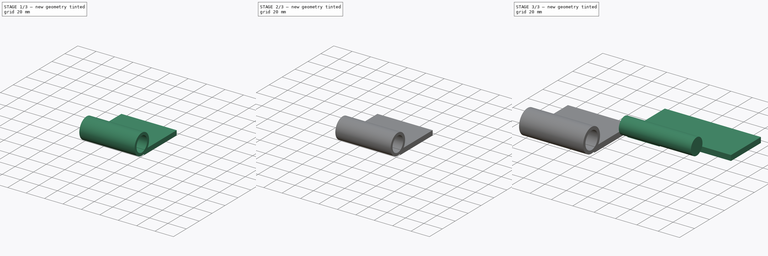
[diagram: build sequence overview — one tinted view per stage of 3, left to right]
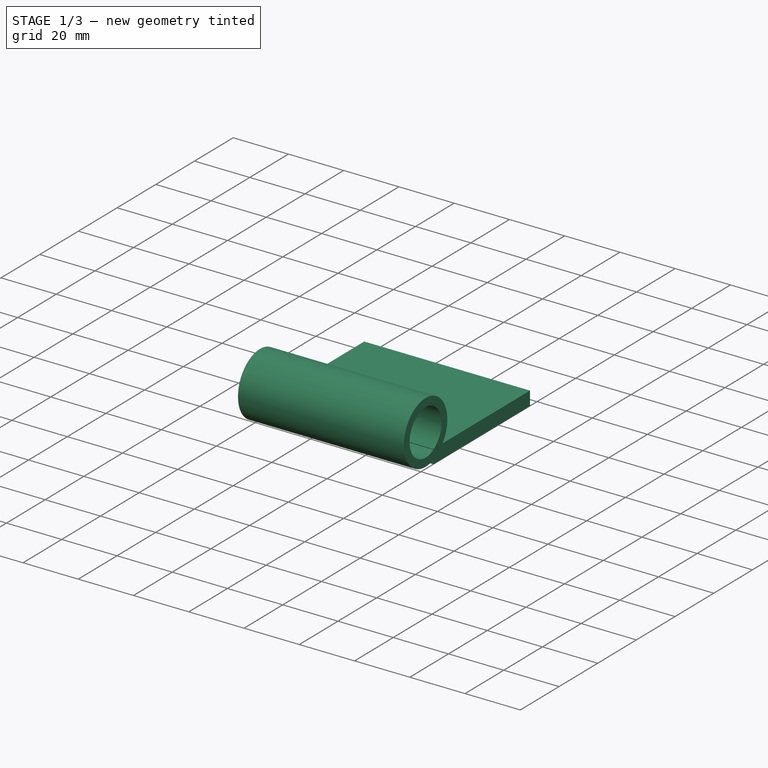
[diagram: stage 1 of 3 — iso view after this stage's code; geometry added in this stage tinted green]
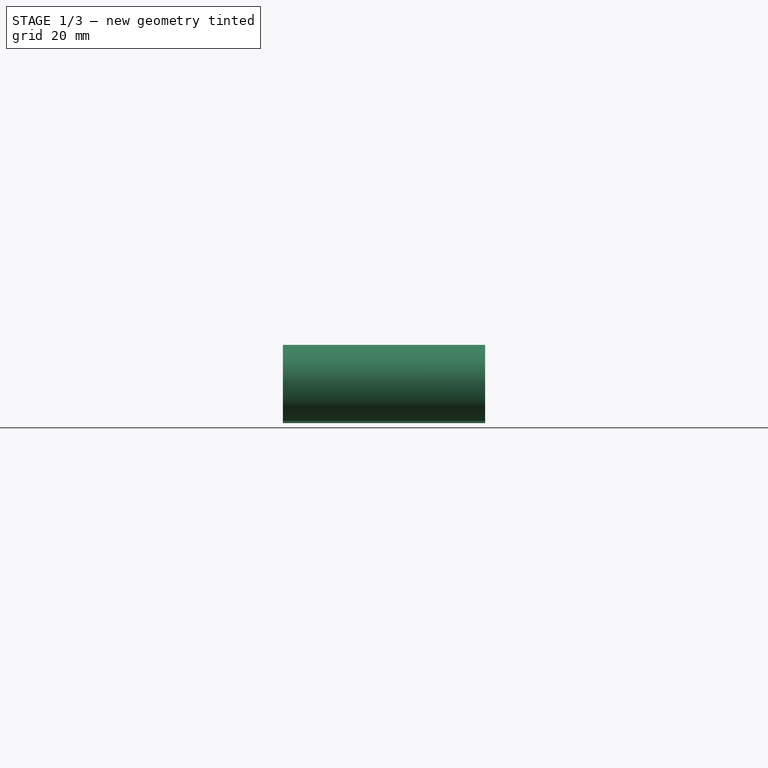
[diagram: stage 1 of 3 — front view after this stage's code; geometry added in this stage tinted green]
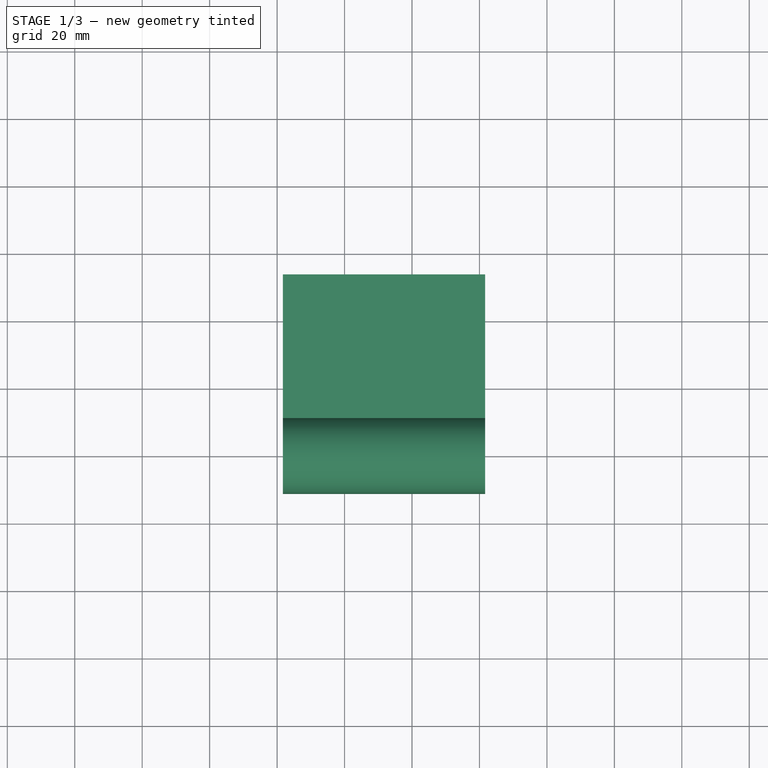
[diagram: stage 1 of 3 — top view after this stage's code; geometry added in this stage tinted green]
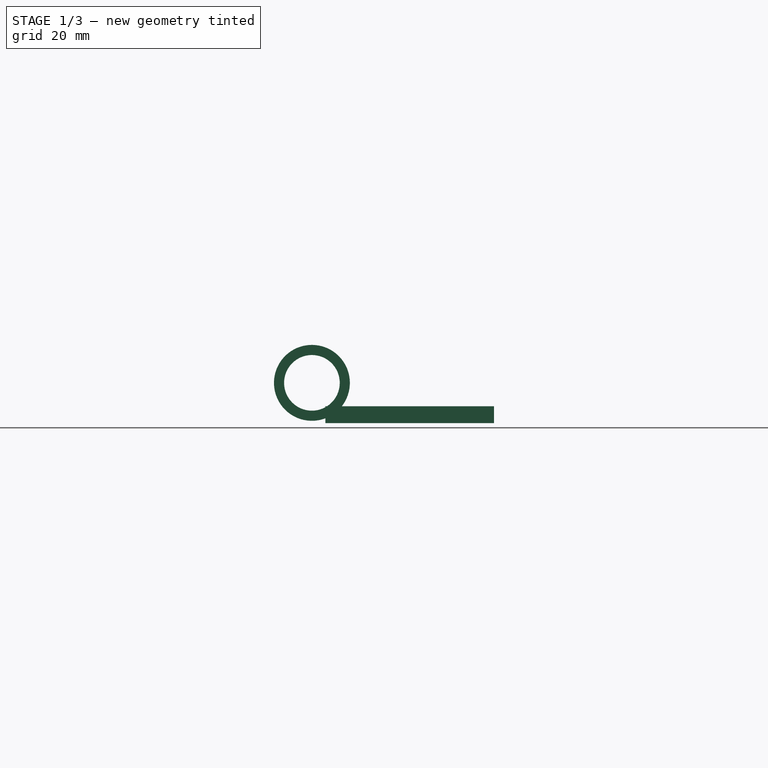
[diagram: stage 1 of 3 — right view after this stage's code; geometry added in this stage tinted green]
FCSTD DOCUMENT  (FreeCAD 1.0R)
Label: paramedic hinge
License: All rights reserved
objects: Sketcher::SketchObject×5, PartDesign::Pad×5, App::VarSet×2, PartDesign::Body×2
note: 27 computed .brp shape members not serialized (recipe doc carries the construction recipe); baked Part::Feature solids carry a one-line shape summary decoded from their .brp

FEATURE [PartDesign::Body] Body
  AllowCompound = false
  Group = -> [Sketch,Pad,Sketch001,Pad001]
  Origin = -> Origin
  Tip = -> Pad001
FEATURE [Sketcher::SketchObject] Sketch002
  ArcFitTolerance = 1e-06
  AttachmentSupport = -> [XY_Plane001]
  FullyConstrained = false
  MakeInternals = false
  MapMode = 5
  expr: Constraints[8] = <<VarSet2>>.width
  expr: Constraints[9] = <<VarSet2>>.lenth
  sketch-geometry (4):
    g0: LineSegment StartX=-18.3046 StartY=-6.03342 StartZ=0 EndX=-78.3046 EndY=-6.03342 EndZ=0
    g1: LineSegment StartX=-78.3046 StartY=-6.03342 StartZ=0 EndX=-78.3046 EndY=-56.0334 EndZ=0
    g2: LineSegment StartX=-78.3046 StartY=-56.0334 StartZ=0 EndX=-18.3046 EndY=-56.0334 EndZ=0
    g3: LineSegment StartX=-18.3046 StartY=-56.0334 StartZ=0 EndX=-18.3046 EndY=-6.03342 EndZ=0
  constraints (10):
    c: Coincident(g0,g1)
    c: Coincident(g1,g2)
    c: Coincident(g2,g3)
    c: Coincident(g3,g0)
    c: Horizontal(g0)
    c: Horizontal(g2)
    c: Vertical(g1)
    c: Vertical(g3)
    c: DistanceX(g0,g0) = 60
    c: DistanceY(g1,g1) = 50
FEATURE [App::VarSet] VarSet001  label="VarSet2"
  circle_back_pad = 22.5
  circle_base_distance = 8
  circle_diameter_thickness = 3
  circle_interior = 16.5
  depth = 5
  lenth = 50
  varset2 = 0
  width = 60
  expr: circle_back_pad = <<VarSet>>.length - <<VarSet>>.circle_pad
  expr: circle_base_distance = (circle_interior - 0.5) / 2
  expr: circle_interior = <<VarSet>>.circle_diameter + 1
  expr: depth = <<VarSet>>.depth
  expr: lenth = <<VarSet>>.width_expanded
  expr: width = VarSet.length - VarSet.widening_division
FEATURE [PartDesign::Pad] Pad002
  Direction = (0,0,1)
  Length = 5
  Length2 = 10
  Profile = -> Sketch002
  ReferenceAxis = -> Sketch002 [N_Axis]
  Refine = true
  Suppressed = false
  Type = 0
  expr: Length = <<VarSet2>>.depth
FEATURE [Sketcher::SketchObject] Sketch003
  ArcFitTolerance = 1e-06
  AttachmentSupport = -> [Pad002]
  ExternalGeometry = -> [Pad002]
  FullyConstrained = true
  MakeInternals = false
  MapMode = 5
  Placement = pos=(-78.3046,0,0) rot=(0.57735,-0.57735,-0.57735;2.0944rad)
  expr: Constraints[0] = VarSet001.circle_interior
  expr: Constraints[1] = <<VarSet2>>.circle_base_distance
  expr: Constraints[3] = <<VarSet2>>.circle_diameter_thickness
  expr: Constraints[4] = <<VarSet2>>.circle_base_distance / 2
  sketch-geometry (2):
    g0: Circle CenterX=60.0334 CenterY=11.9282 CenterZ=0 NormalX=0 NormalY=0 NormalZ=1 AngleXU=0 Radius=8.25
    g1: Circle CenterX=60.0334 CenterY=11.9282 CenterZ=0 NormalX=0 NormalY=0 NormalZ=1 AngleXU=0 Radius=11.25
  constraints (5):
    c: Diameter(g0) = 16.5
    c: Distance(g0,g-3) = 8
    c: Coincident(g1,g0)
    c: Distance(g0,g1) = 3
    c: DistanceX(g-4,g0) = 4
FEATURE [PartDesign::Pad] Pad003
  BaseFeature = -> Pad002
  Direction = (-1,0,0)
  Length = 60
  Length2 = 10
  Profile = -> Sketch003
  ReferenceAxis = -> Sketch003 [N_Axis]
  Refine = true
  Reversed = true
  Suppressed = false
  Type = 0
  expr: Length = <<VarSet2>>.width
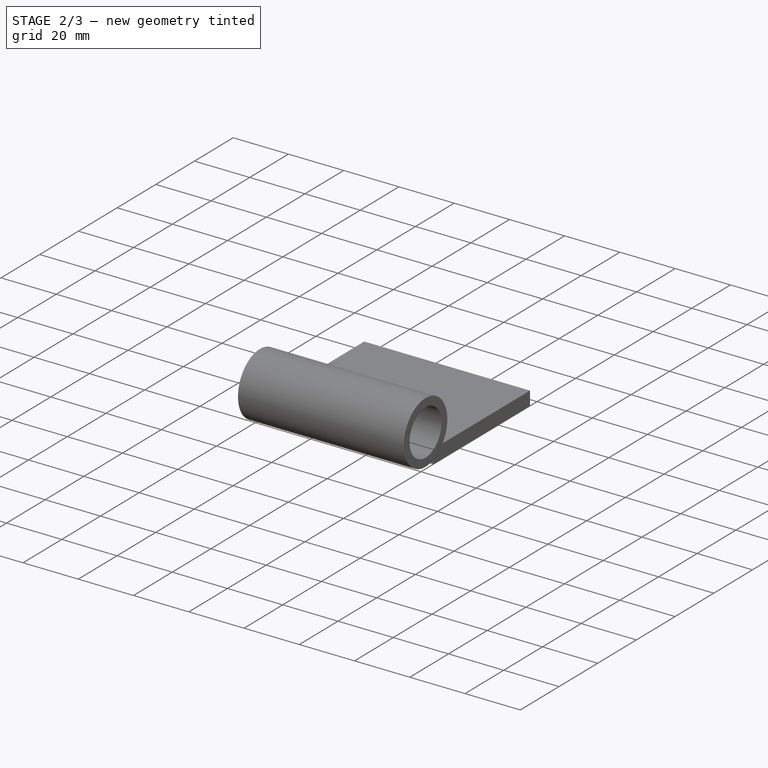
[diagram: stage 2 of 3 — iso view after this stage's code; geometry added in this stage tinted green]
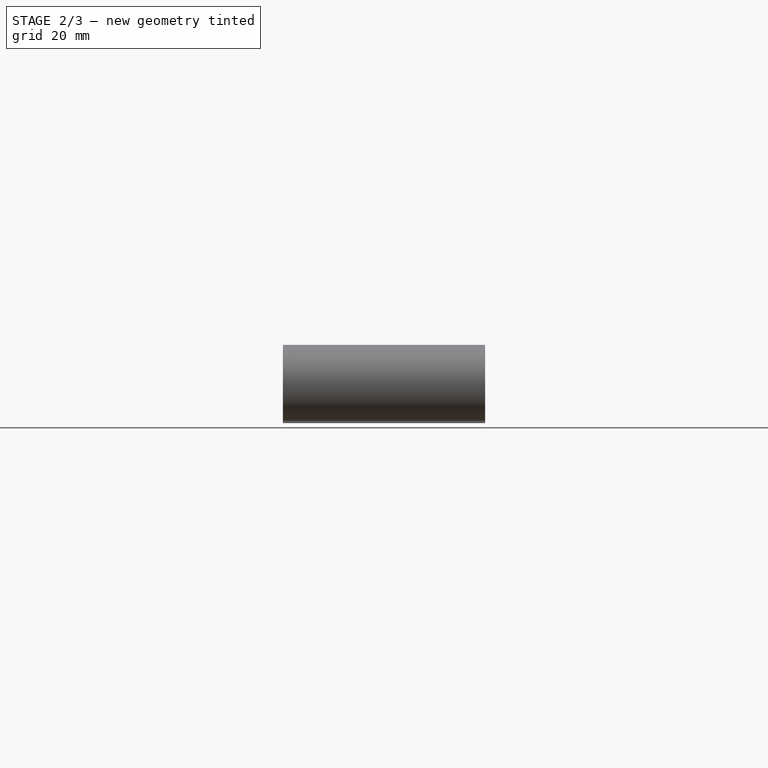
[diagram: stage 2 of 3 — front view after this stage's code; geometry added in this stage tinted green]
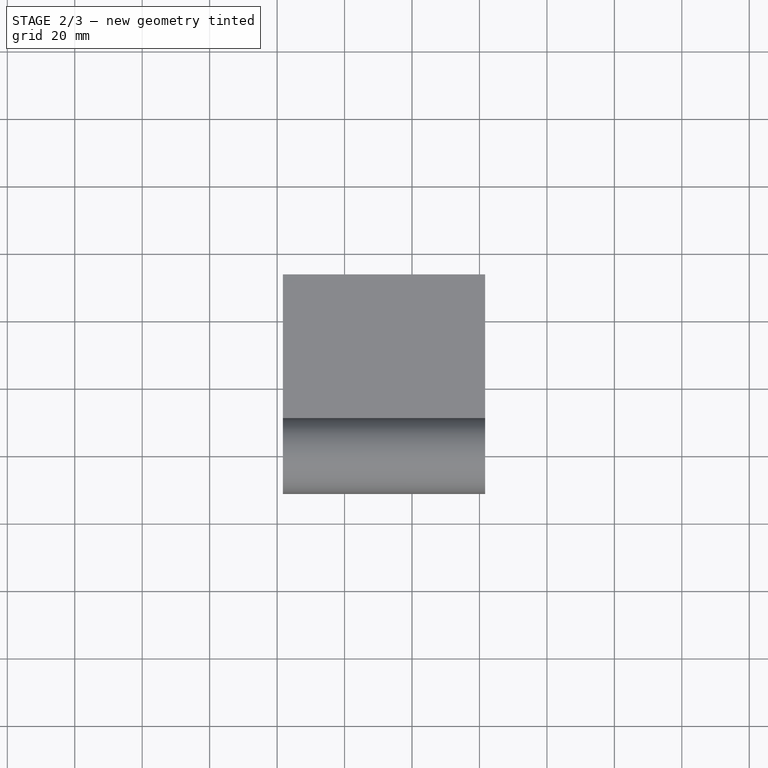
[diagram: stage 2 of 3 — top view after this stage's code; geometry added in this stage tinted green]
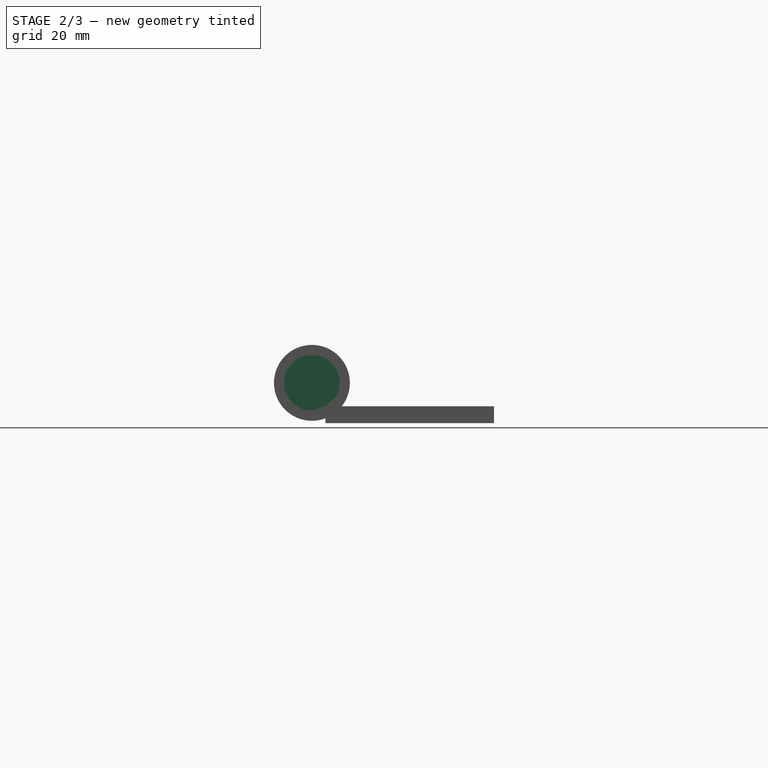
[diagram: stage 2 of 3 — right view after this stage's code; geometry added in this stage tinted green]
FEATURE [Sketcher::SketchObject] Sketch004
  ArcFitTolerance = 1e-06
  AttachmentSupport = -> [Pad003]
  ExternalGeometry = -> [Pad003]
  FullyConstrained = true
  MakeInternals = false
  MapMode = 5
  Placement = pos=(-78.3046,0,0) rot=(0.57735,-0.57735,-0.57735;2.0944rad)
  expr: Constraints[1] = <<VarSet2>>.circle_interior
  sketch-geometry (1):
    g0: Circle CenterX=60.0334 CenterY=11.9282 CenterZ=0 NormalX=0 NormalY=0 NormalZ=1 AngleXU=0 Radius=8.25
  constraints (2):
    c: Coincident(g0,g-3)
    c: Diameter(g0) = 16.5
FEATURE [PartDesign::Pad] Pad004
  BaseFeature = -> Pad003
  Direction = (-1,0,0)
  Length = 22.5
  Length2 = 10
  Profile = -> Sketch004
  ReferenceAxis = -> Sketch004 [N_Axis]
  Refine = true
  Reversed = true
  Suppressed = false
  Type = 0
  expr: Length = <<VarSet2>>.circle_back_pad
FEATURE [PartDesign::Body] Body001
  AllowCompound = false
  Group = -> [Sketch002,Pad002,Sketch003,Pad003,Sketch004,Pad004]
  Origin = -> Origin001
  Placement = pos=(6.5,-83,0) rot=(0,0,1;3.14159rad)
  Tip = -> Pad004
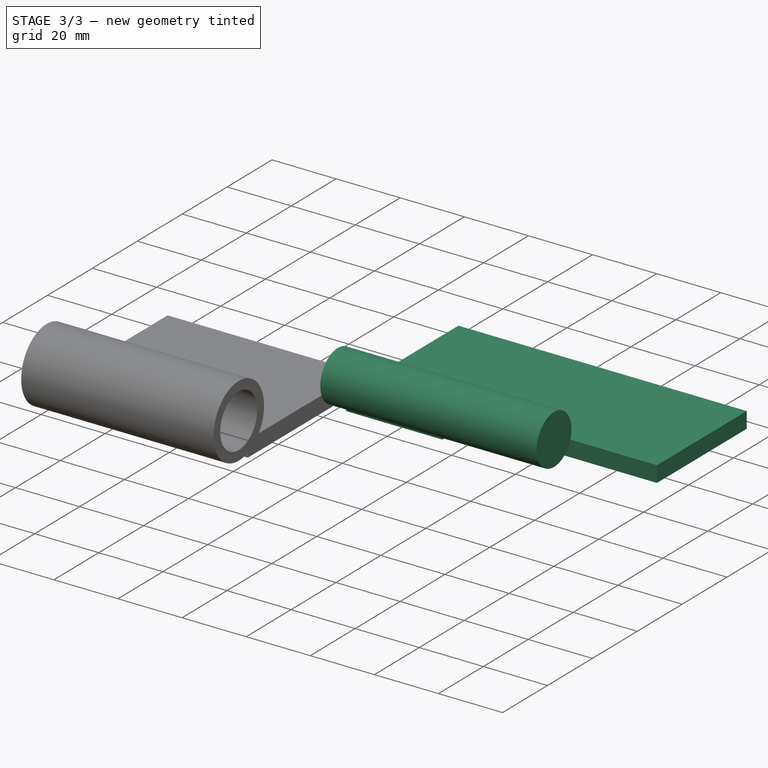
[diagram: stage 3 of 3 — iso view after this stage's code; geometry added in this stage tinted green]
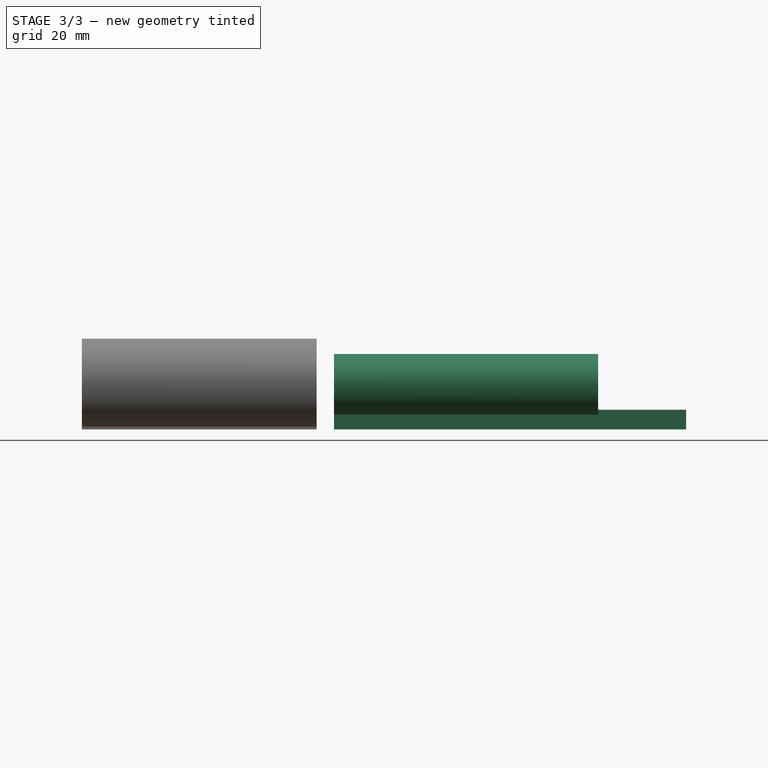
[diagram: stage 3 of 3 — front view after this stage's code; geometry added in this stage tinted green]
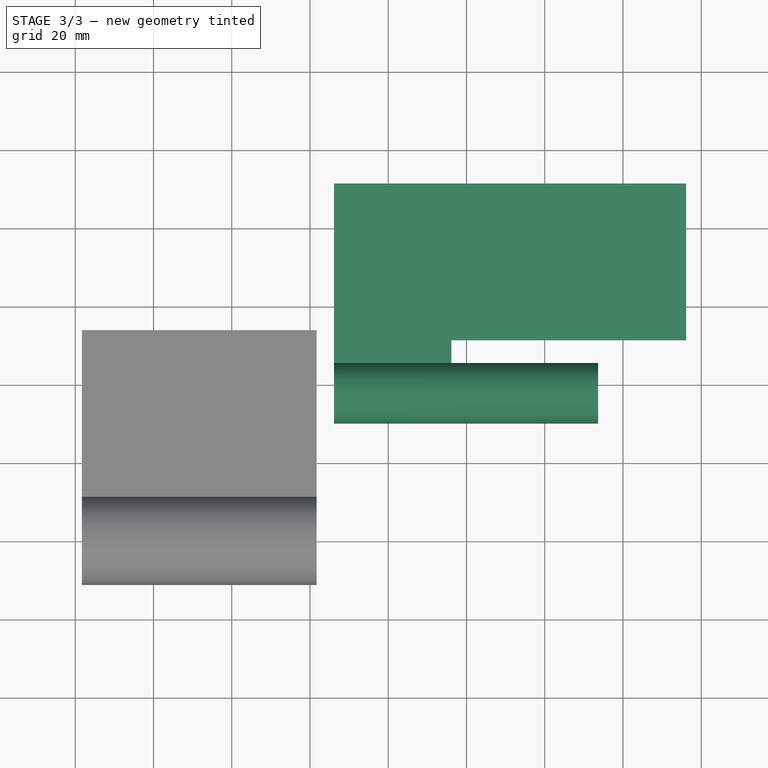
[diagram: stage 3 of 3 — top view after this stage's code; geometry added in this stage tinted green]
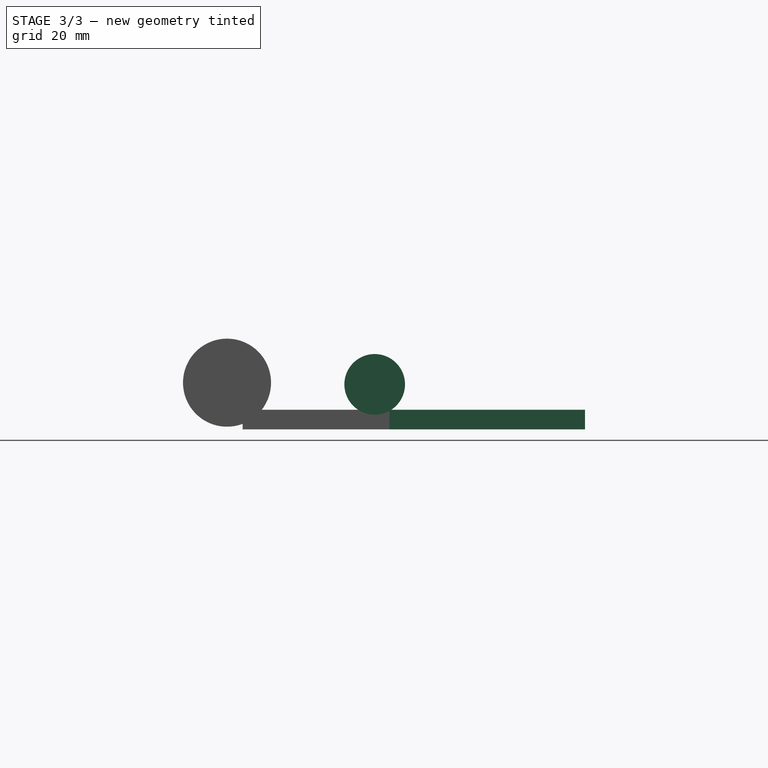
[diagram: stage 3 of 3 — right view after this stage's code; geometry added in this stage tinted green]
FEATURE [App::VarSet] VarSet
  circle_base_distance = 7.5
  circle_diameter = 15.5
  circle_pad = 67.5
  depth = 5
  length = 90
  main_base_set = 0
  widening_division = 30
  width = 40
  width_expanded = 50
  expr: circle_base_distance = (circle_diameter - 0.5) / 2
  expr: circle_pad = length - length / 4
  expr: widening_division = length / 3
  expr: width_expanded = width + 10
FEATURE [Sketcher::SketchObject] Sketch
  ArcFitTolerance = 1e-06
  AttachmentSupport = -> [XY_Plane]
  FullyConstrained = false
  MakeInternals = false
  MapMode = 5
  expr: Constraints[11] = VarSet.width
  expr: Constraints[15] = VarSet.width_expanded
  expr: Constraints[16] = VarSet.widening_division
  expr: Constraints[4] = VarSet.length
  sketch-geometry (7):
    g0: LineSegment StartX=76.142 StartY=-8.54157 StartZ=0 EndX=76.142 EndY=31.4584 EndZ=0
    g1: LineSegment StartX=76.142 StartY=31.4584 StartZ=0 EndX=-13.858 EndY=31.4584 EndZ=0
    g2: GeomPoint [constr] X=0 Y=0 Z=0
    g3: LineSegment StartX=-13.858 StartY=-18.5416 StartZ=0 EndX=16.142 EndY=-18.5416 EndZ=0
    g4: LineSegment StartX=16.142 StartY=-18.5416 StartZ=0 EndX=16.142 EndY=-8.54157 EndZ=0
    g5: LineSegment StartX=16.142 StartY=-8.54157 StartZ=0 EndX=76.142 EndY=-8.54157 EndZ=0
    g6: LineSegment StartX=-13.858 StartY=31.4584 StartZ=0 EndX=-13.858 EndY=-18.5416 EndZ=0
  constraints (17):
    c: Coincident(g0,g1)
    c: Horizontal(g1)
    c: Vertical(g0)
    c: Coincident(g2,g-1)
    c: DistanceX(g1,g1) = 90
    c: Coincident(g3,g4)
    c: Vertical(g4)
    c: Horizontal(g3)
    c: Coincident(g5,g4)
    c: Coincident(g5,g0)
    c: Horizontal(g5)
    c: DistanceY(g0,g0) = 40
    c: Coincident(g6,g1)
    c: Coincident(g6,g3)
    c: Vertical(g6)
    c: DistanceY(g6,g6) = 50
    c: Distance(g4,g6) = 30
FEATURE [PartDesign::Pad] Pad
  Direction = (0,0,1)
  Length = 5
  Length2 = 10
  Profile = -> Sketch
  ReferenceAxis = -> Sketch [N_Axis]
  Refine = true
  Suppressed = false
  Type = 0
  expr: Length = VarSet.depth
FEATURE [Sketcher::SketchObject] Sketch001
  ArcFitTolerance = 1e-06
  AttachmentSupport = -> [Pad]
  ExternalGeometry = -> [Pad]
  FullyConstrained = true
  MakeInternals = false
  MapMode = 5
  Placement = pos=(-13.858,0,0) rot=(0.57735,-0.57735,-0.57735;2.0944rad)
  expr: Constraints[0] = VarSet.circle_diameter
  expr: Constraints[1] = VarSet.circle_base_distance
  expr: Constraints[2] = VarSet.circle_base_distance / 2
  sketch-geometry (1):
    g0: Circle CenterX=22.2916 CenterY=11.4952 CenterZ=0 NormalX=0 NormalY=0 NormalZ=1 AngleXU=0 Radius=7.75
  constraints (3):
    c: Diameter(g0) = 15.5
    c: Distance(g0,g-3) = 7.5
    c: Distance(g0,g-4) = 3.75
FEATURE [PartDesign::Pad] Pad001
  BaseFeature = -> Pad
  Direction = (-1,0,0)
  Length = 67.5
  Length2 = 10
  Profile = -> Sketch001
  ReferenceAxis = -> Sketch001 [N_Axis]
  Refine = true
  Reversed = true
  Suppressed = false
  Type = 0
  expr: Length = VarSet.circle_pad
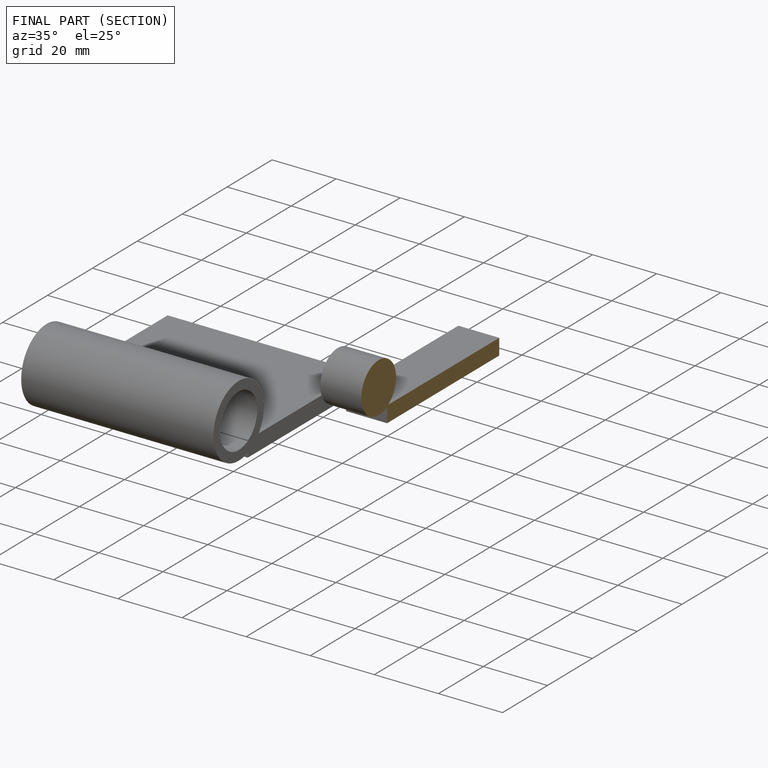
[diagram: finished part — half-section view (interior)]
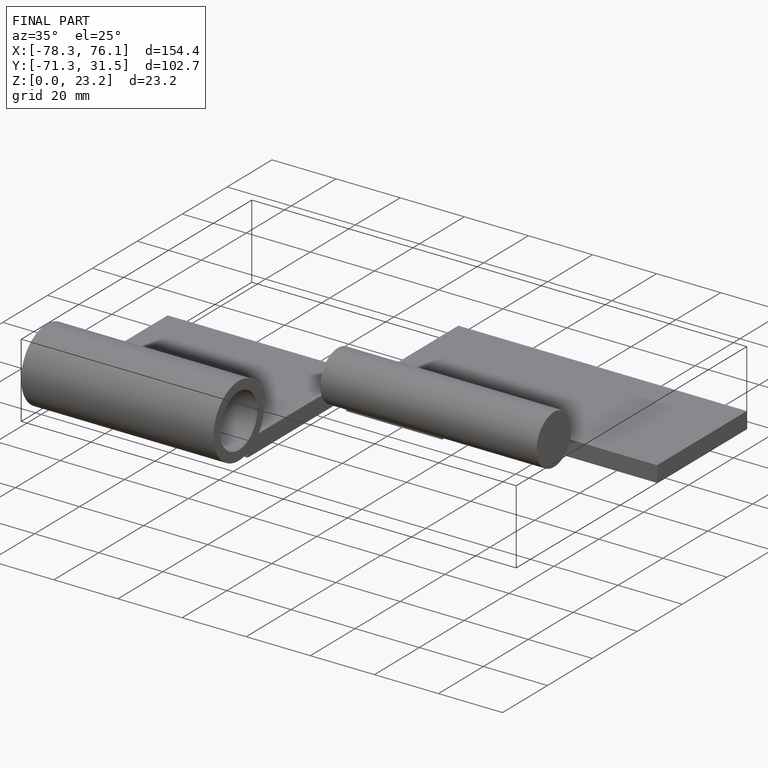
[diagram: finished part — iso view with bounding-box wireframe]
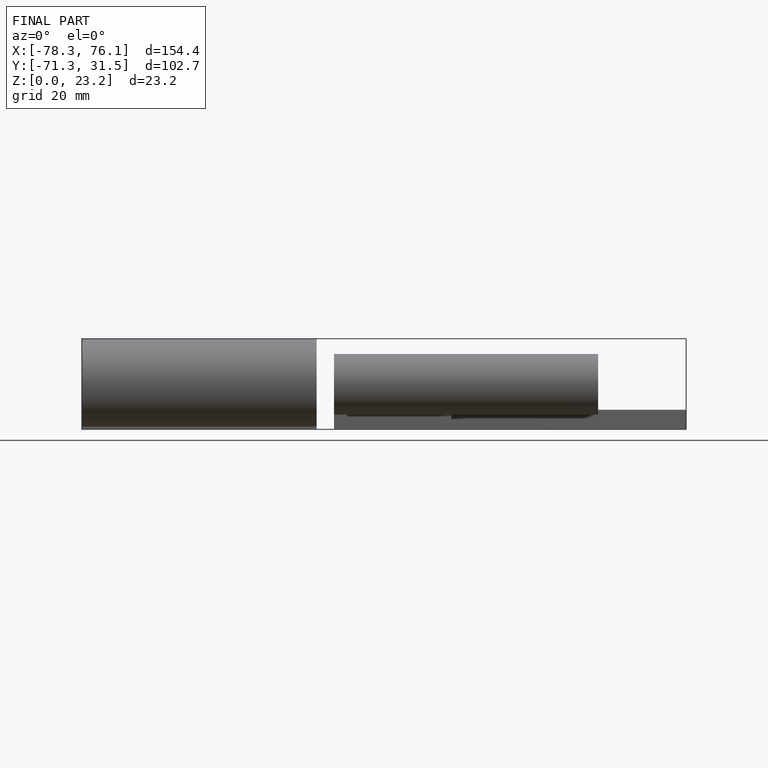
[diagram: finished part — front view with bounding-box wireframe]
